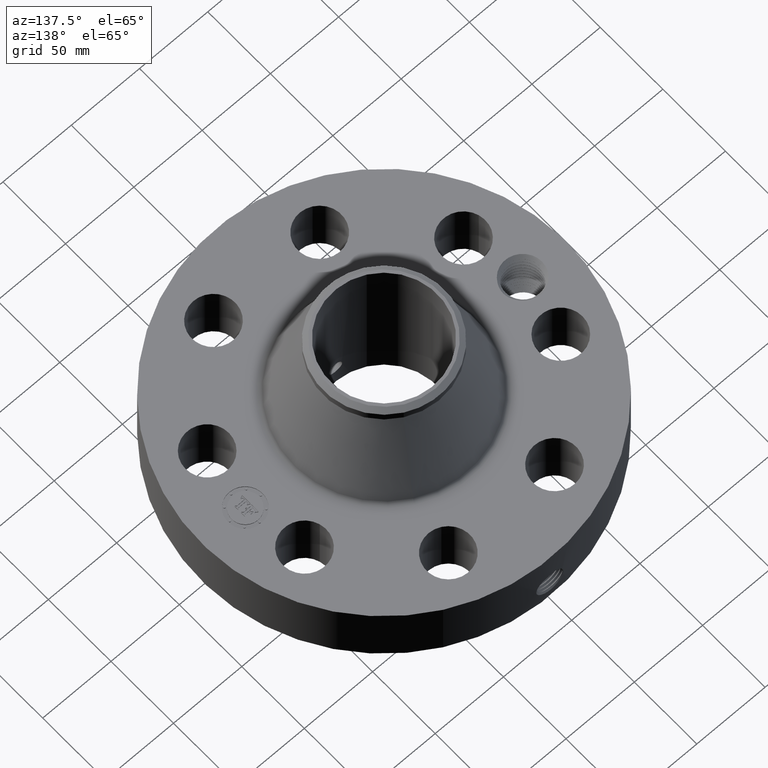
[diagram: clean part render]
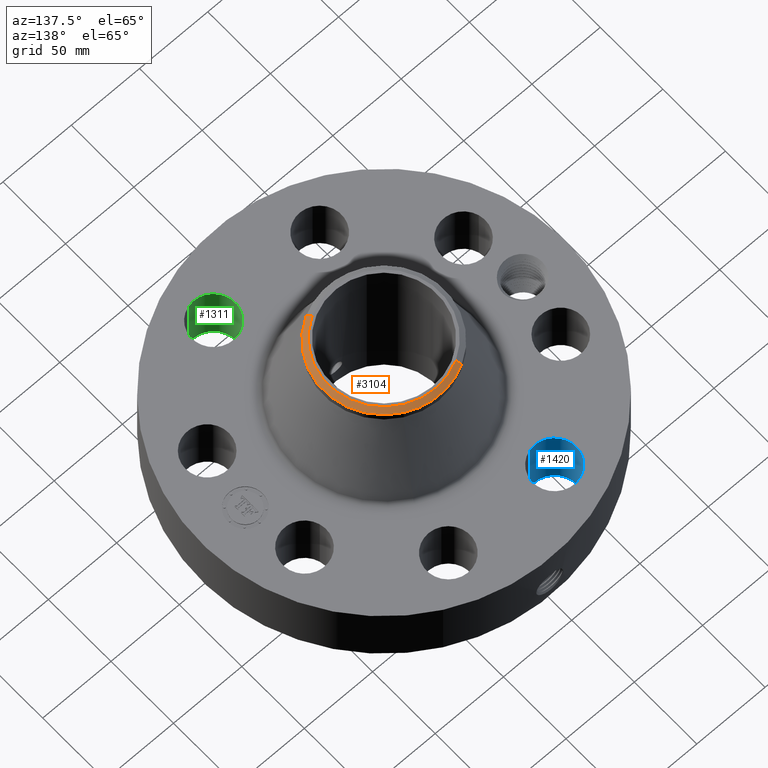
[diagram: same view with three faces highlighted in distinct colors, each labeled with its STEP entity id]
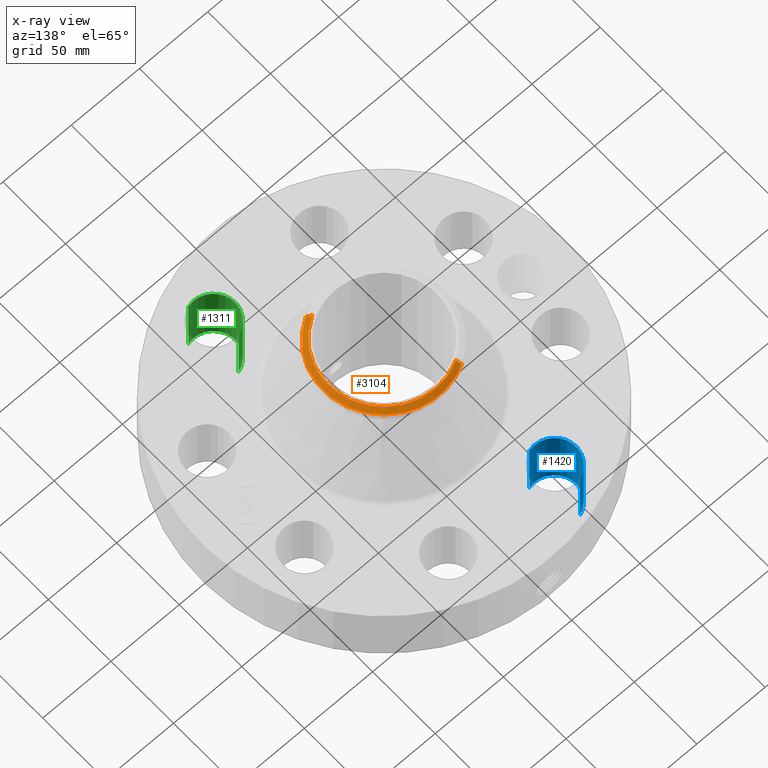
[diagram: x-ray of the same camera — body ghosted, the three highlighted faces saturated]
A machine part, auxiliary view with three faces highlighted in distinct colors.
The next image is the same camera in x-ray (body ghosted, the three faces saturated) — at least one of them is partly hidden behind the body in this view.
Their STEP definitions:

[orange] entity #3104 — the highlighted conical surface has half-angle 52.5 deg.
#2241=AXIS2_PLACEMENT_3D('Circle Axis2P3D',#2239,#2240,$) ;
#3049=AXIS2_PLACEMENT_3D('Cone Axis2P3D',#3046,#3047,#3048) ;
#3087=AXIS2_PLACEMENT_3D('Circle Axis2P3D',#3085,#3086,$) ;
#3094=AXIS2_PLACEMENT_3D('Circle Axis2P3D',#3092,#3093,$) ;
#2239=CARTESIAN_POINT('Axis2P3D Location',(0.,0.,4.87000000002)) ;
#2243=CARTESIAN_POINT('Vertex',(0.773188818632,-1.41531263907,4.87000000002)) ;
#2245=CARTESIAN_POINT('Vertex',(-0.773188818632,1.41531263907,4.87000000002)) ;
#3046=CARTESIAN_POINT('Axis2P3D Location',(0.,0.,4.87000000002)) ;
#3051=CARTESIAN_POINT('Line Origine',(0.806091755596,-1.47554106119,4.81733840925)) ;
#3055=CARTESIAN_POINT('Vertex',(0.838994692561,-1.53576948331,4.76467681849)) ;
#3058=CARTESIAN_POINT('Line Origine',(-0.806091755596,1.47554106119,4.81733840925)) ;
#3062=CARTESIAN_POINT('Vertex',(-0.838994692561,1.53576948331,4.76467681849)) ;
#3085=CARTESIAN_POINT('Axis2P3D Location',(0.,0.,4.76467681849)) ;
#3089=CARTESIAN_POINT('Vertex',(0.838994692561,1.53576948331,4.76467681849)) ;
#3092=CARTESIAN_POINT('Axis2P3D Location',(0.,0.,4.76467681849)) ;
#2240=DIRECTION('Axis2P3D Direction',(0.,0.,-0.0393700787402)) ;
#3047=DIRECTION('Axis2P3D Direction',(-0.,-0.,-0.0393700787402)) ;
#3048=DIRECTION('Axis2P3D XDirection',(-0.0188750212049,0.0345504945626,0.)) ;
#3052=DIRECTION('Vector Direction',(0.014974561121,-0.02741075027,-0.023966985394)) ;
#3059=DIRECTION('Vector Direction',(-0.014974561121,0.02741075027,-0.023966985394)) ;
#3086=DIRECTION('Axis2P3D Direction',(0.,0.,-0.0393700787402)) ;
#3093=DIRECTION('Axis2P3D Direction',(0.,0.,-0.0393700787402)) ;
#3053=VECTOR('Line Direction',#3052,0.0393700787402) ;
#3060=VECTOR('Line Direction',#3059,0.0393700787402) ;
#3098=ORIENTED_EDGE('',*,*,#3064,.F.) ;
#3099=ORIENTED_EDGE('',*,*,#2247,.F.) ;
#3100=ORIENTED_EDGE('',*,*,#3057,.T.) ;
#3101=ORIENTED_EDGE('',*,*,#3091,.T.) ;
#3102=ORIENTED_EDGE('',*,*,#3096,.F.) ;
#3104=ADVANCED_FACE('PartBody',(#3103),#3050,.T.) ;
#2242=CIRCLE('generated circle',#2241,1.61274015749) ;
#3088=CIRCLE('generated circle',#3087,1.75000000001) ;
#3095=CIRCLE('generated circle',#3094,1.75000000001) ;
#3050=CONICAL_SURFACE('Cone',#3049,1.61274015749,0.916297857297) ;
#2247=EDGE_CURVE('',#2244,#2246,#2242,.F.) ;
#3057=EDGE_CURVE('',#2244,#3056,#3054,.T.) ;
#3064=EDGE_CURVE('',#2246,#3063,#3061,.T.) ;
#3091=EDGE_CURVE('',#3056,#3090,#3088,.F.) ;
#3096=EDGE_CURVE('',#3063,#3090,#3095,.T.) ;
#3097=EDGE_LOOP('',(#3098,#3099,#3100,#3101,#3102)) ;
#3103=FACE_OUTER_BOUND('',#3097,.T.) ;
#3054=LINE('Line',#3051,#3053) ;
#3061=LINE('Line',#3058,#3060) ;
#2244=VERTEX_POINT('',#2243) ;
#2246=VERTEX_POINT('',#2245) ;
#3056=VERTEX_POINT('',#3055) ;
#3063=VERTEX_POINT('',#3062) ;
#3090=VERTEX_POINT('',#3089) ;

[blue] entity #1420 — the highlighted cylindrical surface (edge-blend (fillet) strip) has radius 15.875 mm, axis along (0, 0, -1).
#339=AXIS2_PLACEMENT_3D('Circle Axis2P3D',#337,#338,$) ;
#672=AXIS2_PLACEMENT_3D('Circle Axis2P3D',#670,#671,$) ;
#1402=AXIS2_PLACEMENT_3D('Cylinder Axis2P3D',#1399,#1400,#1401) ;
#337=CARTESIAN_POINT('Axis2P3D Location',(-1.53073372947,3.69551813006,0.250000000001)) ;
#341=CARTESIAN_POINT('Vertex',(-1.3547715225,3.09579961132,0.250000000001)) ;
#343=CARTESIAN_POINT('Vertex',(-1.70669593643,4.2952366488,0.250000000001)) ;
#665=CARTESIAN_POINT('Vertex',(-1.70669593643,4.2952366488,2.13000000001)) ;
#667=CARTESIAN_POINT('Vertex',(-1.3547715225,3.09579961132,2.13000000001)) ;
#670=CARTESIAN_POINT('Axis2P3D Location',(-1.53073372947,3.69551813006,2.13000000001)) ;
#1399=CARTESIAN_POINT('Axis2P3D Location',(-1.53073372947,3.69551813006,2.12606299213)) ;
#1404=CARTESIAN_POINT('Line Origine',(-1.3547715225,3.09579961132,1.19)) ;
#1409=CARTESIAN_POINT('Line Origine',(-1.70669593643,4.2952366488,1.19)) ;
#338=DIRECTION('Axis2P3D Direction',(0.,0.,-0.0393700787402)) ;
#671=DIRECTION('Axis2P3D Direction',(0.,0.,-0.0393700787402)) ;
#1400=DIRECTION('Axis2P3D Direction',(0.,0.,-0.0393700787402)) ;
#1401=DIRECTION('Axis2P3D XDirection',(-0.0110842335096,0.0377775444876,0.)) ;
#1405=DIRECTION('Vector Direction',(0.,0.,-0.0393700787402)) ;
#1410=DIRECTION('Vector Direction',(0.,0.,-0.0393700787402)) ;
#1406=VECTOR('Line Direction',#1405,0.0393700787402) ;
#1411=VECTOR('Line Direction',#1410,0.0393700787402) ;
#1415=ORIENTED_EDGE('',*,*,#1408,.F.) ;
#1416=ORIENTED_EDGE('',*,*,#345,.T.) ;
#1417=ORIENTED_EDGE('',*,*,#1413,.T.) ;
#1418=ORIENTED_EDGE('',*,*,#674,.F.) ;
#1420=ADVANCED_FACE('PartBody',(#1419),#1403,.F.) ;
#340=CIRCLE('generated circle',#339,0.625000000003) ;
#673=CIRCLE('generated circle',#672,0.625000000003) ;
#1403=CYLINDRICAL_SURFACE('generated cylinder',#1402,0.625000000003) ;
#345=EDGE_CURVE('',#342,#344,#340,.T.) ;
#674=EDGE_CURVE('',#668,#666,#673,.T.) ;
#1408=EDGE_CURVE('',#342,#668,#1407,.F.) ;
#1413=EDGE_CURVE('',#344,#666,#1412,.F.) ;
#1414=EDGE_LOOP('',(#1415,#1416,#1417,#1418)) ;
#1419=FACE_OUTER_BOUND('',#1414,.T.) ;
#1407=LINE('Line',#1404,#1406) ;
#1412=LINE('Line',#1409,#1411) ;
#342=VERTEX_POINT('',#341) ;
#344=VERTEX_POINT('',#343) ;
#666=VERTEX_POINT('',#665) ;
#668=VERTEX_POINT('',#667) ;

[green] entity #1311 — the highlighted cylindrical surface (edge-blend (fillet) strip) has radius 15.875 mm, axis along (0, -0, -1).
#276=AXIS2_PLACEMENT_3D('Circle Axis2P3D',#274,#275,$) ;
#591=AXIS2_PLACEMENT_3D('Circle Axis2P3D',#589,#590,$) ;
#1286=AXIS2_PLACEMENT_3D('Cylinder Axis2P3D',#1283,#1284,#1285) ;
#269=CARTESIAN_POINT('Vertex',(1.3547715225,-3.09579961132,0.250000000001)) ;
#271=CARTESIAN_POINT('Vertex',(1.70669593643,-4.2952366488,0.250000000001)) ;
#274=CARTESIAN_POINT('Axis2P3D Location',(1.53073372947,-3.69551813006,0.250000000001)) ;
#589=CARTESIAN_POINT('Axis2P3D Location',(1.53073372947,-3.69551813006,2.13000000001)) ;
#593=CARTESIAN_POINT('Vertex',(1.70669593643,-4.2952366488,2.13000000001)) ;
#595=CARTESIAN_POINT('Vertex',(1.3547715225,-3.09579961132,2.13000000001)) ;
#1283=CARTESIAN_POINT('Axis2P3D Location',(1.53073372947,-3.69551813006,2.12606299213)) ;
#1288=CARTESIAN_POINT('Line Origine',(1.3547715225,-3.09579961132,1.19)) ;
#1293=CARTESIAN_POINT('Line Origine',(1.70669593643,-4.2952366488,1.19)) ;
#275=DIRECTION('Axis2P3D Direction',(0.,0.,-0.0393700787402)) ;
#590=DIRECTION('Axis2P3D Direction',(0.,0.,-0.0393700787402)) ;
#1284=DIRECTION('Axis2P3D Direction',(0.,-0.,-0.0393700787402)) ;
#1285=DIRECTION('Axis2P3D XDirection',(0.0110842335096,-0.0377775444876,0.)) ;
#1289=DIRECTION('Vector Direction',(0.,0.,-0.0393700787402)) ;
#1294=DIRECTION('Vector Direction',(0.,0.,-0.0393700787402)) ;
#1290=VECTOR('Line Direction',#1289,0.0393700787402) ;
#1295=VECTOR('Line Direction',#1294,0.0393700787402) ;
#1306=ORIENTED_EDGE('',*,*,#1297,.F.) ;
#1307=ORIENTED_EDGE('',*,*,#278,.T.) ;
#1308=ORIENTED_EDGE('',*,*,#1292,.T.) ;
#1309=ORIENTED_EDGE('',*,*,#597,.F.) ;
#1311=ADVANCED_FACE('PartBody',(#1310),#1287,.F.) ;
#277=CIRCLE('generated circle',#276,0.625000000003) ;
#592=CIRCLE('generated circle',#591,0.625000000003) ;
#1287=CYLINDRICAL_SURFACE('generated cylinder',#1286,0.625000000003) ;
#278=EDGE_CURVE('',#272,#270,#277,.T.) ;
#597=EDGE_CURVE('',#594,#596,#592,.T.) ;
#1292=EDGE_CURVE('',#270,#596,#1291,.F.) ;
#1297=EDGE_CURVE('',#272,#594,#1296,.F.) ;
#1305=EDGE_LOOP('',(#1306,#1307,#1308,#1309)) ;
#1310=FACE_OUTER_BOUND('',#1305,.T.) ;
#1291=LINE('Line',#1288,#1290) ;
#1296=LINE('Line',#1293,#1295) ;
#270=VERTEX_POINT('',#269) ;
#272=VERTEX_POINT('',#271) ;
#594=VERTEX_POINT('',#593) ;
#596=VERTEX_POINT('',#595) ;